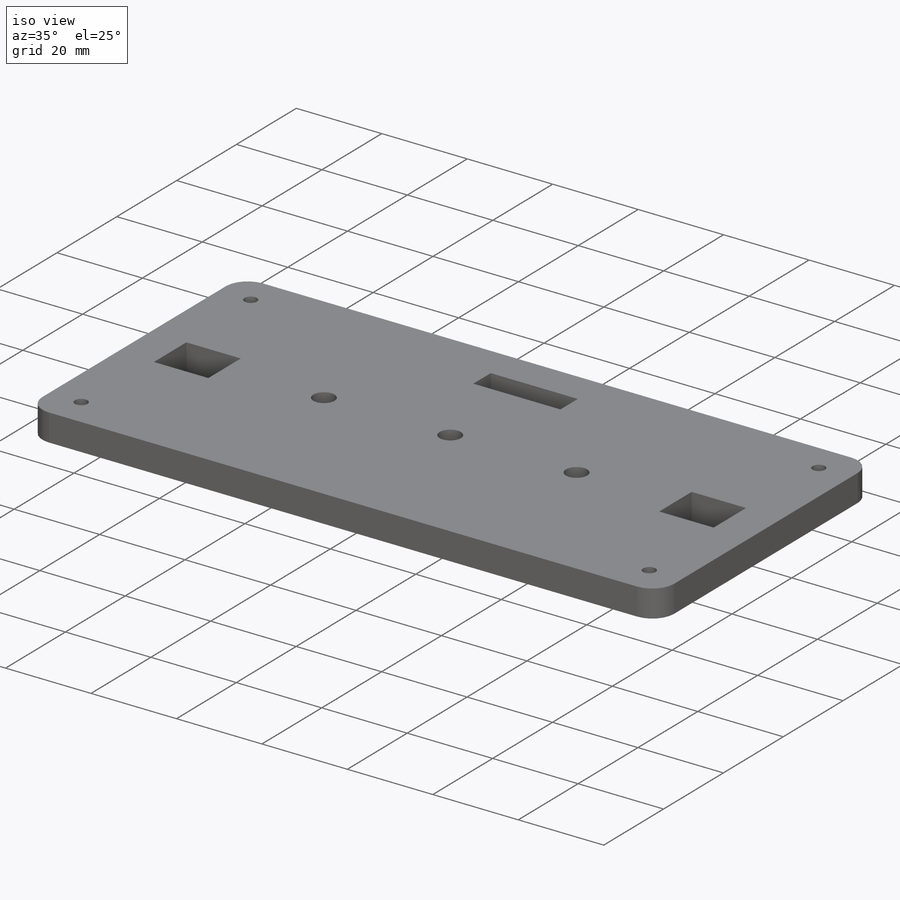
[diagram: iso view]
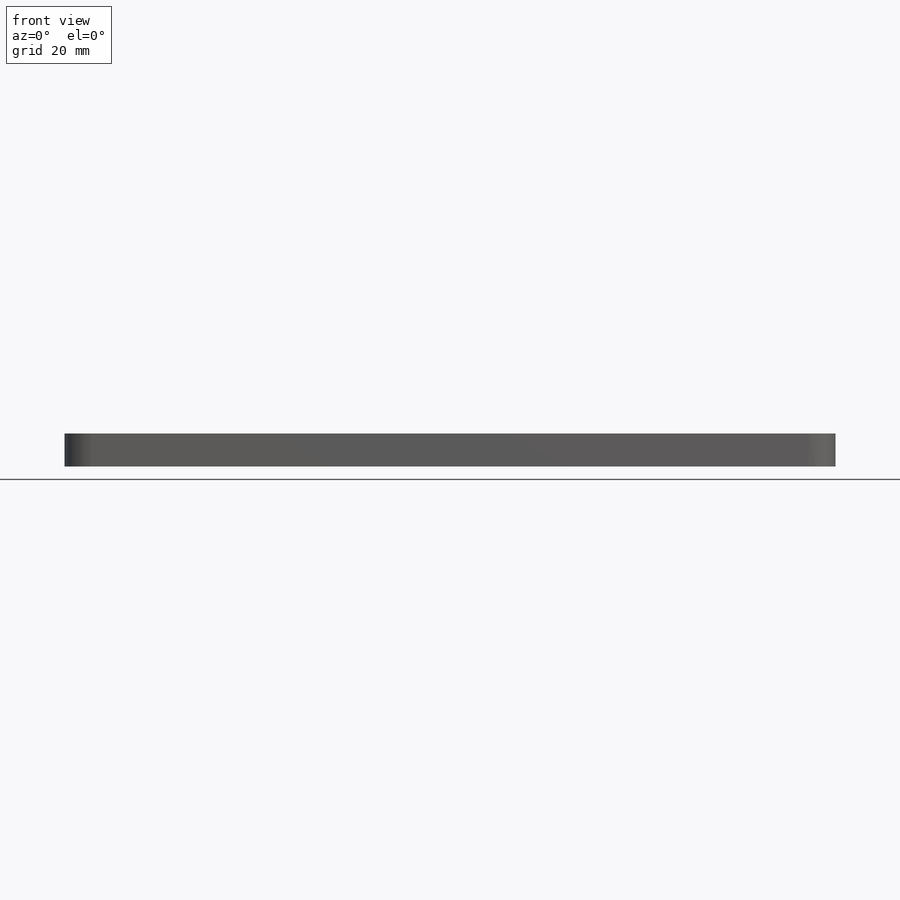
[diagram: front view]
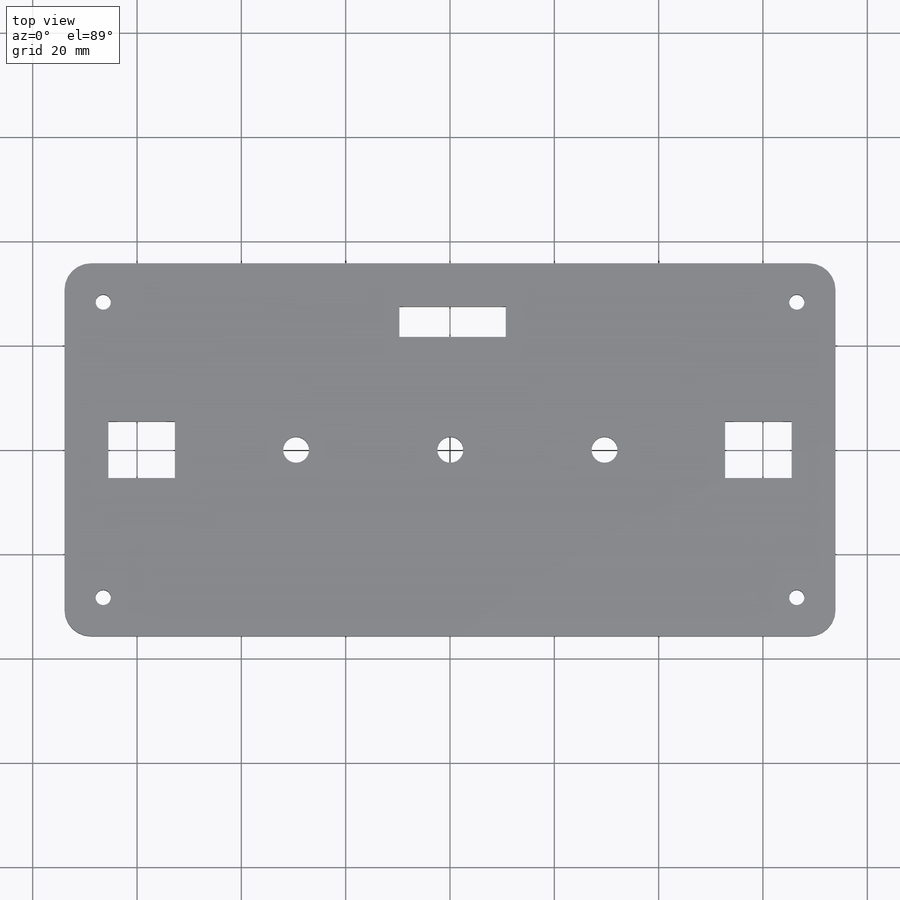
[diagram: top view]
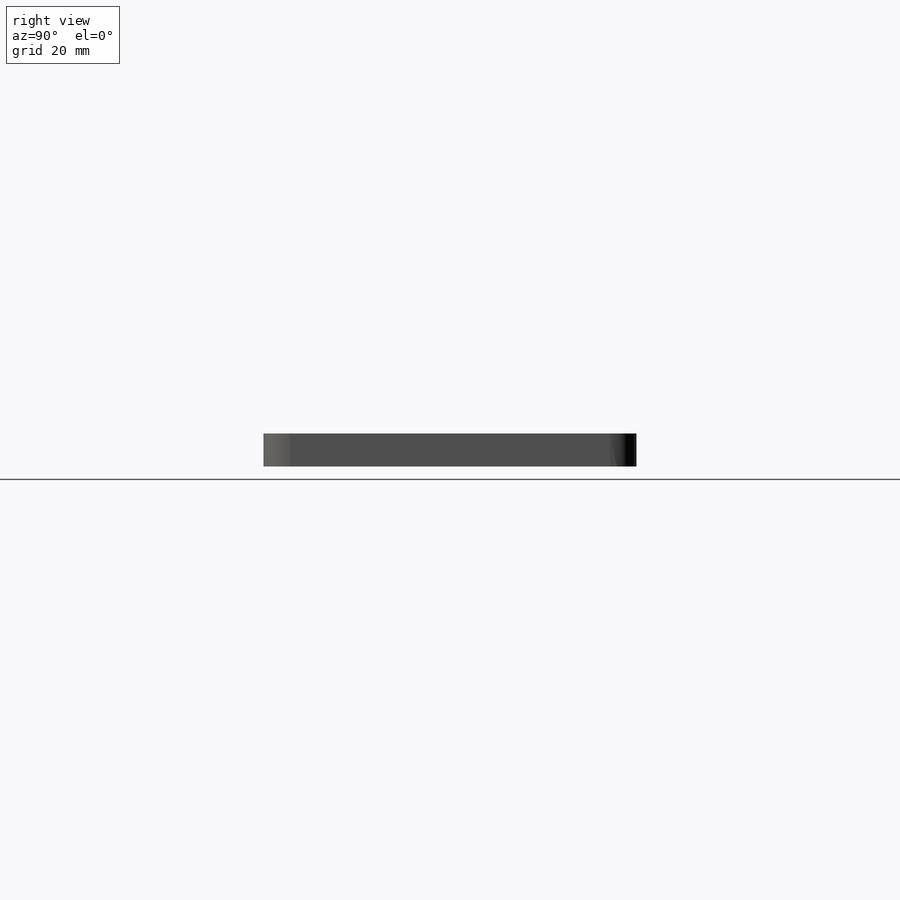
[diagram: right view]
SOLIDWORKS PART (.sldprt)
format: sldprt  version: not decoded by parser v0  size: 344,576 bytes
history: native  units: mm
features: sketch x5, cut_extrude x3, material x1, extrude x1, fillet x1 (+11 scaffold rows collapsed)
feature tree (22):
  scaffold x11  (default folders/planes/origin — collapsed)
  material  "Material <not specified>"
  sketch  "Sketch1"  dims[D1=147.828mm D2=71.501mm]
  extrude  "Boss-Extrude1"  Depth=6.35mm
  fillet  "Fillet1"  Radius=5.08mm
  sketch  "Sketch2"  dims[c1.D5=4.9784mm c1.D6=4.9784mm c1.D1=12.7508mm c1.D2=12.7508mm c1.D3=10.8712mm c1.D4=10.8712mm c1.D7=14.7828mm c1.D8=35.7505mm c1.D9=14.7828mm c1.D10=14.7828mm c2.D7=14.7828mm c2.D10=35.7505mm c2.D11=14.7828mm c2.D12=29.5656mm c3.D11=29.5656mm]
  cut_extrude  "Cut-Extrude1"  [1 undecoded]
  sketch  "Sketch3"  dims[D3=2.921mm D1=5.969mm D2=5.969mm]
  cut_extrude  "Cut-Extrude2"  [1 undecoded]
  sketch  "Sketch4"
  sketch  "Sketch5"
  cut_extrude  "Cut-Extrude3"  [1 undecoded]
decode coverage: 5 of 10 modeling features carry decoded parameters
note: 3 parameter values undecoded
summary: no parameter record found for 3 features
note: suppression state not decoded; provenance and decode notes live in map.json
